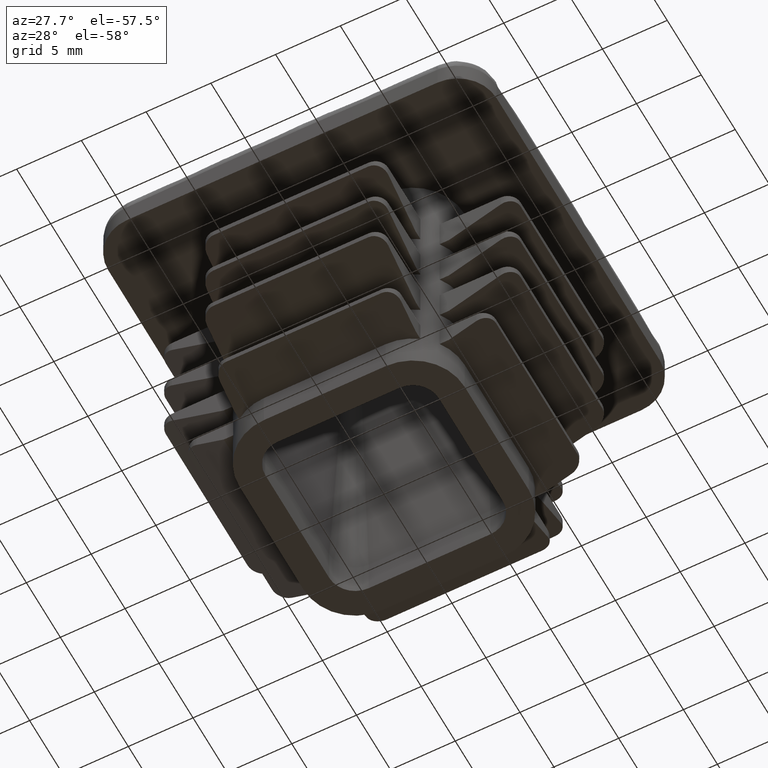
[diagram: clean part render]
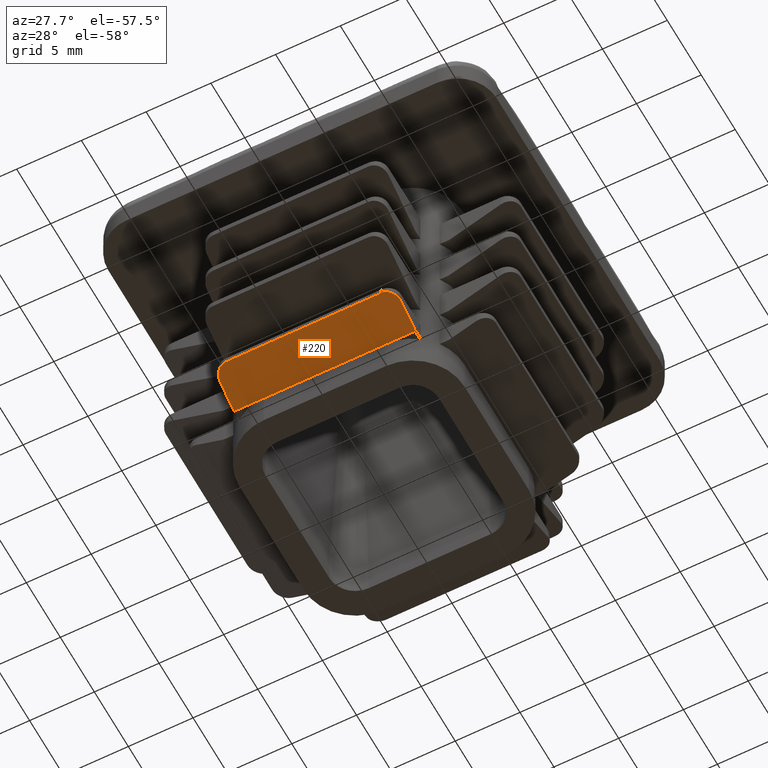
[diagram: same view with one face highlighted and labeled with its STEP entity id]
A machine part, auxiliary view. The second image highlights one B-rep face of the part: STEP entity #220.
In plain terms, the highlighted planar face has unit normal (0, 0.3746, 0.9272).
Its self-contained STEP definition (entity closure, byte-faithful):
#220 = ADVANCED_FACE( '', ( #650 ), #651, .F. );
#650 = FACE_OUTER_BOUND( '', #2199, .T. );
#651 = PLANE( '', #2200 );
#2199 = EDGE_LOOP( '', ( #4445, #4446, #4447, #4448, #4449, #4450, #4451, #4452 ) );
#2200 = AXIS2_PLACEMENT_3D( '', #4453, #4454, #4455 );
#4445 = ORIENTED_EDGE( '', *, *, #5858, .T. );
#4446 = ORIENTED_EDGE( '', *, *, #5859, .T. );
#4447 = ORIENTED_EDGE( '', *, *, #5848, .F. );
#4448 = ORIENTED_EDGE( '', *, *, #5860, .T. );
#4449 = ORIENTED_EDGE( '', *, *, #5861, .F. );
#4450 = ORIENTED_EDGE( '', *, *, #5846, .T. );
#4451 = ORIENTED_EDGE( '', *, *, #5737, .T. );
#4452 = ORIENTED_EDGE( '', *, *, #5853, .T. );
#4453 = CARTESIAN_POINT( '', ( -7.00000000000000, -8.70000000000003, 2.80000000000002 ) );
#4454 = DIRECTION( '', ( 6.88118421721324E-017, 0.374606593415912, 0.927183854566787 ) );
#4455 = DIRECTION( '', ( 1.70315285919602E-016, 0.927183854566787, -0.374606593415912 ) );
#5737 = EDGE_CURVE( '', #6641, #6532, #6706, .T. );
#5846 = EDGE_CURVE( '', #6876, #6641, #6877, .T. );
#5848 = EDGE_CURVE( '', #6879, #6880, #6881, .T. );
#5853 = EDGE_CURVE( '', #6532, #6887, #6889, .T. );
#5858 = EDGE_CURVE( '', #6887, #6896, #6897, .T. );
#5859 = EDGE_CURVE( '', #6896, #6880, #6898, .F. );
#5860 = EDGE_CURVE( '', #6879, #6899, #6900, .F. );
#5861 = EDGE_CURVE( '', #6876, #6899, #6901, .T. );
#6532 = VERTEX_POINT( '', #8998 );
#6641 = VERTEX_POINT( '', #9148 );
#6706 = LINE( '', #9238, #9239 );
#6876 = VERTEX_POINT( '', #9832 );
#6877 = LINE( '', #9833, #9834 );
#6879 = VERTEX_POINT( '', #9837 );
#6880 = VERTEX_POINT( '', #9838 );
#6881 = LINE( '', #9839, #9840 );
#6887 = VERTEX_POINT( '', #9849 );
#6889 = LINE( '', #9852, #9853 );
#6896 = VERTEX_POINT( '', #9862 );
#6897 = LINE( '', #9863, #9864 );
#6898 = ELLIPSE( '', #9865, 1.07853474267758, 1.00000000000000 );
#6899 = VERTEX_POINT( '', #9866 );
#6900 = ELLIPSE( '', #9867, 1.07853474267758, 1.00000000000000 );
#6901 = LINE( '', #9868, #9869 );
#8998 = CARTESIAN_POINT( '', ( 4.70000000000000, -8.70000000000000, 2.80000000000000 ) );
#9148 = CARTESIAN_POINT( '', ( -4.70000000000000, -8.70000000000000, 2.80000000000000 ) );
#9238 = CARTESIAN_POINT( '', ( -7.00000000000000, -8.70000000000000, 2.80000000000000 ) );
#9239 = VECTOR( '', #10798, 1000.00000000000 );
#9832 = CARTESIAN_POINT( '', ( -7.00000000000000, -8.70000000000000, 2.80000000000000 ) );
#9833 = CARTESIAN_POINT( '', ( -7.00000000000000, -8.70000000000000, 2.80000000000000 ) );
#9834 = VECTOR( '', #10930, 1000.00000000000 );
#9837 = CARTESIAN_POINT( '', ( -6.00000000000000, -11.8000000000000, 4.05248130008900 ) );
#9838 = CARTESIAN_POINT( '', ( 6.00000000000000, -11.8000000000000, 4.05248130008900 ) );
#9839 = CARTESIAN_POINT( '', ( -7.00000000000000, -11.8000000000000, 4.05248130008900 ) );
#9840 = VECTOR( '', #10932, 1000.00000000000 );
#9849 = CARTESIAN_POINT( '', ( 7.00000000000000, -8.70000000000000, 2.80000000000000 ) );
#9852 = CARTESIAN_POINT( '', ( -7.00000000000000, -8.70000000000000, 2.80000000000000 ) );
#9853 = VECTOR( '', #10937, 1000.00000000000 );
#9862 = CARTESIAN_POINT( '', ( 7.00000000000000, -10.8000000000000, 3.64845507425383 ) );
#9863 = CARTESIAN_POINT( '', ( 7.00000000000000, -8.70000000000003, 2.80000000000002 ) );
#9864 = VECTOR( '', #10946, 1000.00000000000 );
#9865 = AXIS2_PLACEMENT_3D( '', #10947, #10948, #10949 );
#9866 = CARTESIAN_POINT( '', ( -7.00000000000000, -10.8000000000000, 3.64845507425383 ) );
#9867 = AXIS2_PLACEMENT_3D( '', #10950, #10951, #10952 );
#9868 = CARTESIAN_POINT( '', ( -7.00000000000000, -8.70000000000003, 2.80000000000002 ) );
#9869 = VECTOR( '', #10953, 1000.00000000000 );
#10798 = DIRECTION( '', ( 1.00000000000000, -1.83690953073357E-016, -7.39557098644698E-032 ) );
#10930 = DIRECTION( '', ( 1.00000000000000, -1.83690953073357E-016, -7.39557098644698E-032 ) );
#10932 = DIRECTION( '', ( 1.00000000000000, -1.83690953073357E-016, -7.39557098644698E-032 ) );
#10937 = DIRECTION( '', ( 1.00000000000000, -1.83690953073357E-016, -7.39557098644698E-032 ) );
#10946 = DIRECTION( '', ( -1.70315285919602E-016, -0.927183854566787, 0.374606593415912 ) );
#10947 = CARTESIAN_POINT( '', ( 6.00000000000000, -10.8000000000000, 3.64845507425383 ) );
#10948 = DIRECTION( '', ( 6.88118421721324E-017, 0.374606593415912, 0.927183854566787 ) );
#10949 = DIRECTION( '', ( -1.70315285919602E-016, -0.927183854566787, 0.374606593415912 ) );
#10950 = CARTESIAN_POINT( '', ( -6.00000000000000, -10.8000000000000, 3.64845507425383 ) );
#10951 = DIRECTION( '', ( 6.88118421721324E-017, 0.374606593415912, 0.927183854566787 ) );
#10952 = DIRECTION( '', ( 1.70315285919602E-016, 0.927183854566787, -0.374606593415912 ) );
#10953 = DIRECTION( '', ( -1.70315285919602E-016, -0.927183854566787, 0.374606593415912 ) );